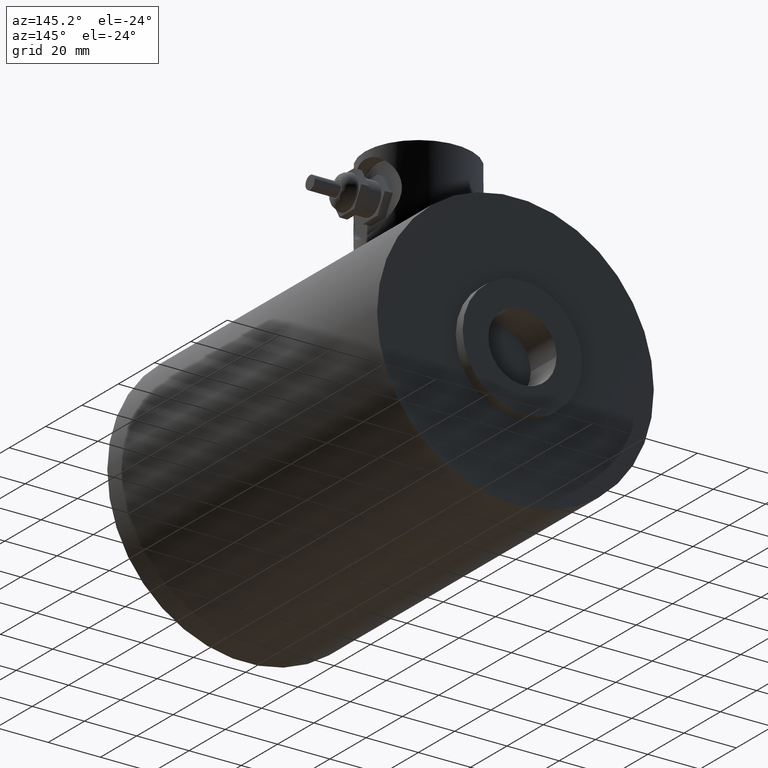
[diagram: clean part render]
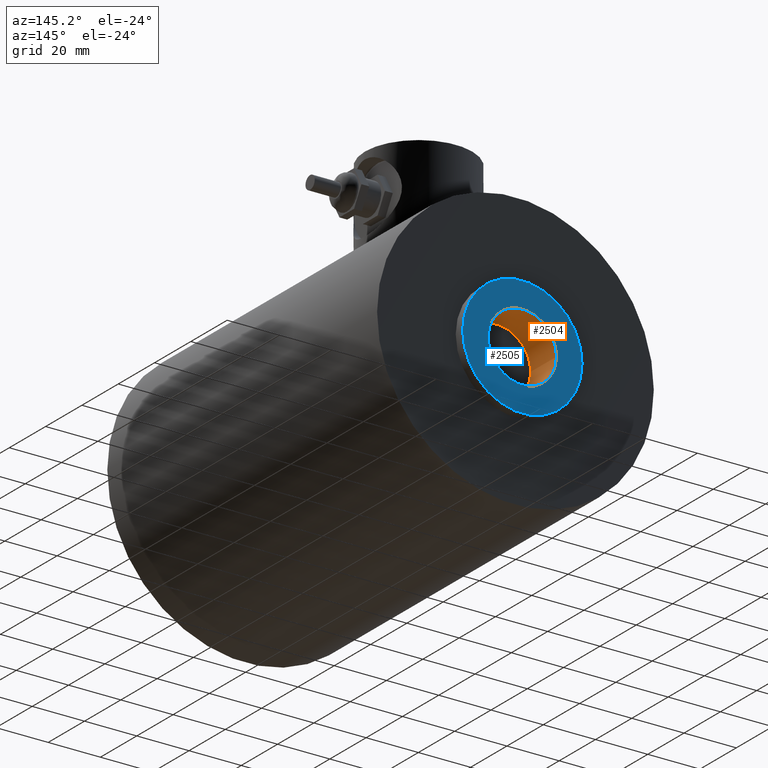
[diagram: same view with the hole feature highlighted: cylindrical wall and planar end face, labeled with their STEP entity ids]
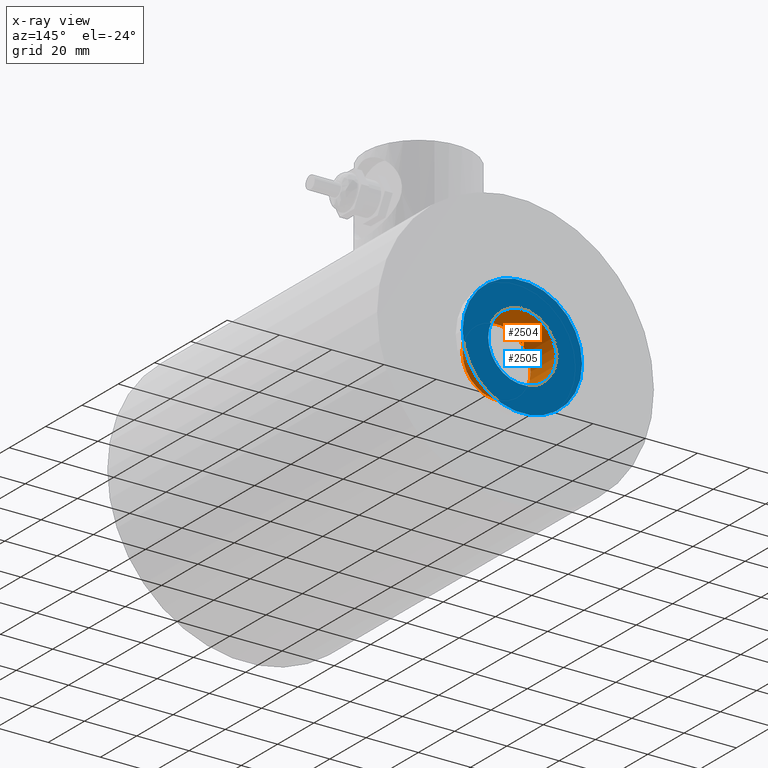
[diagram: x-ray of the same camera — body ghosted, the hole faces saturated]
A machine part, auxiliary view. The highlighted faces form one hole feature of diameter 26.162 mm: the cylindrical wall (entity #2504, orange) and its adjacent planar end face (entity #2505, blue) — they share a circular edge in the B-rep.
The next image is the same camera in x-ray (body ghosted, the hole faces saturated) — the bore reads through the body.
Wall:
#403=FACE_OUTER_BOUND('',#559,.T.);
#559=EDGE_LOOP('',(#2235,#2236,#2237,#2238,#2239,#2240));
#699=LINE('',#13031,#834);
#834=VECTOR('',#3214,0.515);
#883=CIRCLE('',#2702,0.515);
#884=CIRCLE('',#2703,0.515);
#885=CIRCLE('',#2705,0.515);
#886=CIRCLE('',#2706,0.515);
#1130=VERTEX_POINT('',#13025);
#1131=VERTEX_POINT('',#13026);
#1132=VERTEX_POINT('',#13030);
#1133=VERTEX_POINT('',#13032);
#1501=EDGE_CURVE('',#1130,#1131,#883,.T.);
#1502=EDGE_CURVE('',#1131,#1130,#884,.T.);
#1503=EDGE_CURVE('',#1131,#1132,#699,.T.);
#1504=EDGE_CURVE('',#1133,#1132,#885,.T.);
#1505=EDGE_CURVE('',#1132,#1133,#886,.T.);
#2235=ORIENTED_EDGE('',*,*,#1501,.T.);
#2236=ORIENTED_EDGE('',*,*,#1503,.T.);
#2237=ORIENTED_EDGE('',*,*,#1504,.F.);
#2238=ORIENTED_EDGE('',*,*,#1505,.F.);
#2239=ORIENTED_EDGE('',*,*,#1503,.F.);
#2240=ORIENTED_EDGE('',*,*,#1502,.T.);
#2361=CYLINDRICAL_SURFACE('',#2704,0.515);
#2504=ADVANCED_FACE('',(#403),#2361,.F.);
#2702=AXIS2_PLACEMENT_3D('',#13027,#3208,#3209);
#2703=AXIS2_PLACEMENT_3D('',#13028,#3210,#3211);
#2704=AXIS2_PLACEMENT_3D('',#13029,#3212,#3213);
#2705=AXIS2_PLACEMENT_3D('',#13033,#3215,#3216);
#2706=AXIS2_PLACEMENT_3D('',#13034,#3217,#3218);
#3208=DIRECTION('center_axis',(0.,-1.,0.));
#3209=DIRECTION('ref_axis',(1.,0.,0.));
#3210=DIRECTION('center_axis',(0.,-1.,0.));
#3211=DIRECTION('ref_axis',(1.,0.,0.));
#3212=DIRECTION('center_axis',(0.,-1.,0.));
#3213=DIRECTION('ref_axis',(1.,0.,0.));
#3214=DIRECTION('',(0.,1.,0.));
#3215=DIRECTION('center_axis',(0.,-1.,0.));
#3216=DIRECTION('ref_axis',(1.,0.,0.));
#3217=DIRECTION('center_axis',(0.,-1.,0.));
#3218=DIRECTION('ref_axis',(1.,0.,0.));
#13025=CARTESIAN_POINT('',(0.515,5.44,0.));
#13026=CARTESIAN_POINT('',(-0.515,5.44,-6.30693101560887E-17));
#13027=CARTESIAN_POINT('Origin',(0.,5.44,0.));
#13028=CARTESIAN_POINT('Origin',(0.,5.44,0.));
#13029=CARTESIAN_POINT('Origin',(0.,5.72,0.));
#13030=CARTESIAN_POINT('',(-0.515,6.,-6.30693101560887E-17));
#13031=CARTESIAN_POINT('',(-0.515,5.72,-6.30693101560887E-17));
#13032=CARTESIAN_POINT('',(0.515,6.,0.));
#13033=CARTESIAN_POINT('Origin',(0.,6.,0.));
#13034=CARTESIAN_POINT('Origin',(0.,6.,0.));
End face:
#230=FACE_BOUND('',#561,.T.);
#261=PLANE('',#2707);
#404=FACE_OUTER_BOUND('',#560,.T.);
#560=EDGE_LOOP('',(#2241,#2242));
#561=EDGE_LOOP('',(#2243,#2244));
#885=CIRCLE('',#2705,0.515);
#886=CIRCLE('',#2706,0.515);
#887=CIRCLE('',#2708,0.9);
#888=CIRCLE('',#2709,0.9);
#1132=VERTEX_POINT('',#13030);
#1133=VERTEX_POINT('',#13032);
#1134=VERTEX_POINT('',#13036);
#1135=VERTEX_POINT('',#13037);
#1504=EDGE_CURVE('',#1133,#1132,#885,.T.);
#1505=EDGE_CURVE('',#1132,#1133,#886,.T.);
#1506=EDGE_CURVE('',#1134,#1135,#887,.T.);
#1507=EDGE_CURVE('',#1135,#1134,#888,.T.);
#2241=ORIENTED_EDGE('',*,*,#1506,.F.);
#2242=ORIENTED_EDGE('',*,*,#1507,.F.);
#2243=ORIENTED_EDGE('',*,*,#1504,.T.);
#2244=ORIENTED_EDGE('',*,*,#1505,.T.);
#2505=ADVANCED_FACE('',(#404,#230),#261,.T.);
#2705=AXIS2_PLACEMENT_3D('',#13033,#3215,#3216);
#2706=AXIS2_PLACEMENT_3D('',#13034,#3217,#3218);
#2707=AXIS2_PLACEMENT_3D('',#13035,#3219,#3220);
#2708=AXIS2_PLACEMENT_3D('',#13038,#3221,#3222);
#2709=AXIS2_PLACEMENT_3D('',#13039,#3223,#3224);
#3215=DIRECTION('center_axis',(0.,-1.,0.));
#3216=DIRECTION('ref_axis',(1.,0.,0.));
#3217=DIRECTION('center_axis',(0.,-1.,0.));
#3218=DIRECTION('ref_axis',(1.,0.,0.));
#3219=DIRECTION('center_axis',(0.,1.,0.));
#3220=DIRECTION('ref_axis',(0.,0.,1.));
#3221=DIRECTION('center_axis',(0.,-1.,0.));
#3222=DIRECTION('ref_axis',(1.,0.,0.));
#3223=DIRECTION('center_axis',(0.,-1.,0.));
#3224=DIRECTION('ref_axis',(1.,0.,0.));
#13030=CARTESIAN_POINT('',(-0.515,6.,-6.30693101560887E-17));
#13032=CARTESIAN_POINT('',(0.515,6.,0.));
#13033=CARTESIAN_POINT('Origin',(0.,6.,0.));
#13034=CARTESIAN_POINT('Origin',(0.,6.,0.));
#13035=CARTESIAN_POINT('Origin',(0.9,6.,0.));
#13036=CARTESIAN_POINT('',(0.9,6.,0.));
#13037=CARTESIAN_POINT('',(-0.9,6.,-1.10218211923262E-16));
#13038=CARTESIAN_POINT('Origin',(0.,6.,0.));
#13039=CARTESIAN_POINT('Origin',(0.,6.,0.));